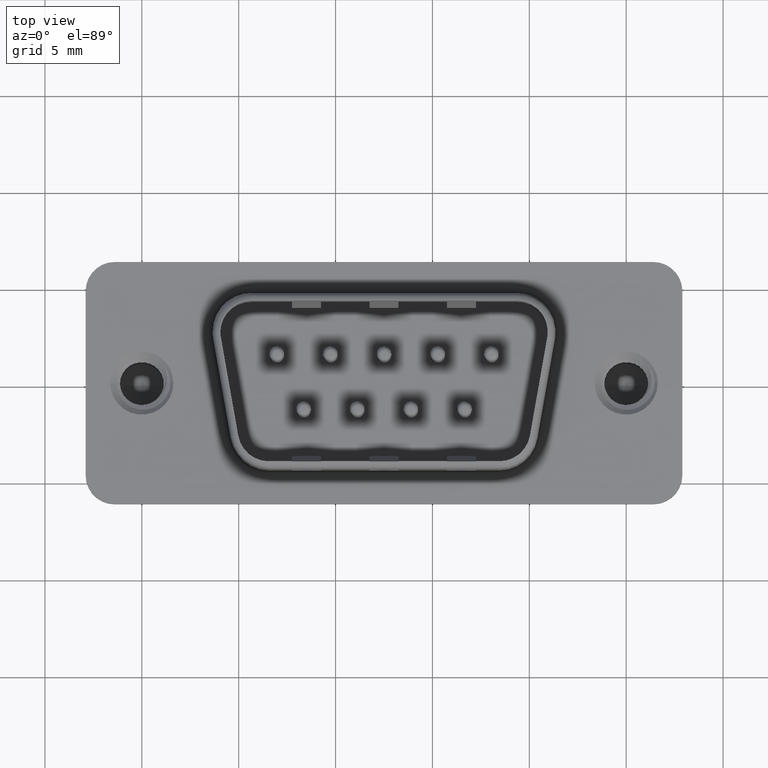
[diagram: clean part render]
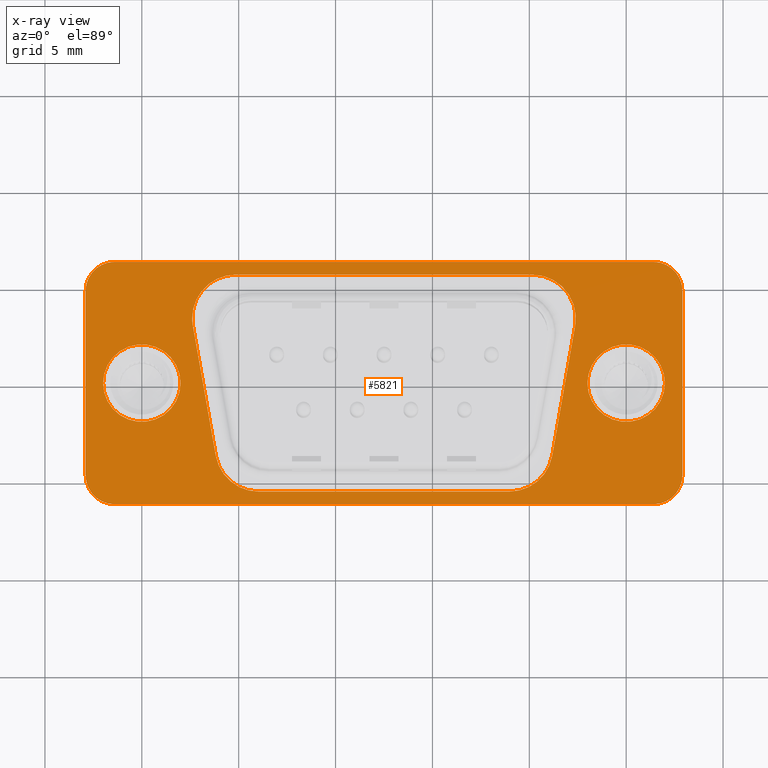
[diagram: x-ray — body ghosted, one internal face saturated and labeled with its STEP entity id]
A machine part, top view, then the same camera in x-ray: the body is ghosted and one INTERNAL B-rep face — a face not visible from any outside direction — is saturated and labeled: STEP entity #5821.
In plain terms, the highlighted planar face has unit normal (0, 0, -1).
Its self-contained STEP definition (entity closure, byte-faithful):
#85 = CARTESIAN_POINT ( 'NONE',  ( 27.90000000000000924, 4.750000000000004441, 0.0000000000000000000 ) ) ;
#184 = EDGE_LOOP ( 'NONE', ( #4875, #3271, #13551, #7991, #13913, #4501, #9204, #3302, #12106 ) ) ;
#400 = CARTESIAN_POINT ( 'NONE',  ( 0.0000000000000000000, 0.0000000000000000000, 0.0000000000000000000 ) ) ;
#424 = VERTEX_POINT ( 'NONE', #4797 ) ;
#442 = LINE ( 'NONE', #5393, #5073 ) ;
#492 = CIRCLE ( 'NONE', #5107, 1.500000000000001332 ) ;
#512 = CARTESIAN_POINT ( 'NONE',  ( 22.36581744427747864, 2.959291600249427390, 0.0000000000000000000 ) ) ;
#551 = AXIS2_PLACEMENT_3D ( 'NONE', #11761, #9252, #4581 ) ;
#605 = LINE ( 'NONE', #11480, #2246 ) ;
#808 = ORIENTED_EDGE ( 'NONE', *, *, #3441, .F. ) ;
#888 = DIRECTION ( 'NONE',  ( 0.0000000000000000000, 0.0000000000000000000, 1.000000000000000000 ) ) ;
#990 = CIRCLE ( 'NONE', #7557, 1.500000000000001332 ) ;
#994 = ORIENTED_EDGE ( 'NONE', *, *, #10795, .F. ) ;
#1106 = LINE ( 'NONE', #4587, #8569 ) ;
#1217 = EDGE_CURVE ( 'NONE', #13929, #7619, #7099, .T. ) ;
#1233 = EDGE_CURVE ( 'NONE', #5368, #8454, #10536, .T. ) ;
#1265 = ORIENTED_EDGE ( 'NONE', *, *, #14622, .T. ) ;
#1295 = CIRCLE ( 'NONE', #5191, 2.249999999999999556 ) ;
#1370 = CARTESIAN_POINT ( 'NONE',  ( 2.634182555722537789, 2.959291600249427390, 1.084202172485504434E-16 ) ) ;
#1439 = DIRECTION ( 'NONE',  ( 0.1736481776669240029, -0.9848077530122092416, -0.0000000000000000000 ) ) ;
#1463 = AXIS2_PLACEMENT_3D ( 'NONE', #3879, #2591, #13194 ) ;
#1647 = DIRECTION ( 'NONE',  ( -1.000000000000000000, 0.0000000000000000000, 0.0000000000000000000 ) ) ;
#2146 = DIRECTION ( 'NONE',  ( 1.000000000000000000, -0.0000000000000000000, -0.0000000000000000000 ) ) ;
#2222 = CARTESIAN_POINT ( 'NONE',  ( -1.399999999999995026, -5.600000000000002309, 0.0000000000000000000 ) ) ;
#2226 = DIRECTION ( 'NONE',  ( -1.000000000000000000, 0.0000000000000000000, 0.0000000000000000000 ) ) ;
#2246 = VECTOR ( 'NONE', #12268, 1000.000000000000000 ) ;
#2483 = VECTOR ( 'NONE', #9403, 1000.000000000000000 ) ;
#2545 = ORIENTED_EDGE ( 'NONE', *, *, #14343, .T. ) ;
#2591 = DIRECTION ( 'NONE',  ( 0.0000000000000000000, 0.0000000000000000000, 1.000000000000000000 ) ) ;
#2803 = VERTEX_POINT ( 'NONE', #9487 ) ;
#2846 = DIRECTION ( 'NONE',  ( 0.0000000000000000000, 0.0000000000000000000, 1.000000000000000000 ) ) ;
#3009 = FACE_BOUND ( 'NONE', #184, .T. ) ;
#3071 = DIRECTION ( 'NONE',  ( -1.000000000000000000, 0.0000000000000000000, 0.0000000000000000000 ) ) ;
#3271 = ORIENTED_EDGE ( 'NONE', *, *, #5873, .F. ) ;
#3273 = CARTESIAN_POINT ( 'NONE',  ( 26.40000000000000568, -4.749999999999995559, 0.0000000000000000000 ) ) ;
#3302 = ORIENTED_EDGE ( 'NONE', *, *, #8691, .F. ) ;
#3314 = VERTEX_POINT ( 'NONE', #12895 ) ;
#3318 = ORIENTED_EDGE ( 'NONE', *, *, #1217, .F. ) ;
#3441 = EDGE_CURVE ( 'NONE', #7619, #13929, #7116, .T. ) ;
#3442 = EDGE_CURVE ( 'NONE', #8454, #6108, #8346, .T. ) ;
#3591 = VECTOR ( 'NONE', #4839, 1000.000000000000000 ) ;
#3626 = CARTESIAN_POINT ( 'NONE',  ( -1.399999999999995026, 4.750000000000000888, 0.0000000000000000000 ) ) ;
#3724 = AXIS2_PLACEMENT_3D ( 'NONE', #10850, #5112, #12347 ) ;
#3729 = AXIS2_PLACEMENT_3D ( 'NONE', #4273, #13592, #3071 ) ;
#3786 = CARTESIAN_POINT ( 'NONE',  ( -1.399999999999995026, 5.600000000000005862, 0.0000000000000000000 ) ) ;
#3854 = LINE ( 'NONE', #3786, #3591 ) ;
#3858 = VERTEX_POINT ( 'NONE', #512 ) ;
#3879 = CARTESIAN_POINT ( 'NONE',  ( 25.00000000000000000, 0.0000000000000000000, 0.0000000000000000000 ) ) ;
#4059 = PLANE ( 'NONE',  #5592 ) ;
#4273 = CARTESIAN_POINT ( 'NONE',  ( 4.850000000000006750, 3.350000000000005862, 0.0000000000000000000 ) ) ;
#4362 = EDGE_CURVE ( 'NONE', #5908, #4852, #990, .T. ) ;
#4363 = VECTOR ( 'NONE', #1439, 999.9999999999998863 ) ;
#4425 = DIRECTION ( 'NONE',  ( 0.0000000000000000000, 0.0000000000000000000, 1.000000000000000000 ) ) ;
#4501 = ORIENTED_EDGE ( 'NONE', *, *, #14489, .F. ) ;
#4509 = CARTESIAN_POINT ( 'NONE',  ( 18.96860922925333526, -3.350000000000002309, 0.0000000000000000000 ) ) ;
#4565 = EDGE_CURVE ( 'NONE', #8107, #13111, #12664, .T. ) ;
#4570 = LINE ( 'NONE', #2222, #9550 ) ;
#4581 = DIRECTION ( 'NONE',  ( 1.000000000000000000, 0.0000000000000000000, 0.0000000000000000000 ) ) ;
#4587 = CARTESIAN_POINT ( 'NONE',  ( 27.90000000000000924, -4.749999999999995559, 0.0000000000000000000 ) ) ;
#4643 = VERTEX_POINT ( 'NONE', #11750 ) ;
#4736 = CARTESIAN_POINT ( 'NONE',  ( -2.899999999999994582, -4.749999999999999112, 0.0000000000000000000 ) ) ;
#4797 = CARTESIAN_POINT ( 'NONE',  ( 21.18442667353080822, -3.740708399750580337, 0.0000000000000000000 ) ) ;
#4839 = DIRECTION ( 'NONE',  ( -1.000000000000000000, 0.0000000000000000000, 0.0000000000000000000 ) ) ;
#4852 = VERTEX_POINT ( 'NONE', #9001 ) ;
#4875 = ORIENTED_EDGE ( 'NONE', *, *, #6407, .F. ) ;
#5073 = VECTOR ( 'NONE', #8602, 999.9999999999998863 ) ;
#5107 = AXIS2_PLACEMENT_3D ( 'NONE', #3273, #7911, #14941 ) ;
#5112 = DIRECTION ( 'NONE',  ( 0.0000000000000000000, 0.0000000000000000000, 1.000000000000000000 ) ) ;
#5191 = AXIS2_PLACEMENT_3D ( 'NONE', #12099, #13323, #1647 ) ;
#5303 = DIRECTION ( 'NONE',  ( -1.000000000000000000, -1.248002500702738800E-16, 0.0000000000000000000 ) ) ;
#5304 = CARTESIAN_POINT ( 'NONE',  ( 2.000000000000000000, 0.0000000000000000000, 0.0000000000000000000 ) ) ;
#5368 = VERTEX_POINT ( 'NONE', #12906 ) ;
#5393 = CARTESIAN_POINT ( 'NONE',  ( 21.18442667353080822, -3.740708399750580337, 1.084202172485504434E-16 ) ) ;
#5521 = DIRECTION ( 'NONE',  ( 1.000000000000000000, 0.0000000000000000000, 0.0000000000000000000 ) ) ;
#5592 = AXIS2_PLACEMENT_3D ( 'NONE', #6500, #8723, #7656 ) ;
#5670 = VERTEX_POINT ( 'NONE', #13137 ) ;
#5821 = ADVANCED_FACE ( 'NONE', ( #3009, #6434, #9874, #14530 ), #4059, .F. ) ;
#5873 = EDGE_CURVE ( 'NONE', #9574, #424, #6080, .T. ) ;
#5908 = VERTEX_POINT ( 'NONE', #85 ) ;
#5939 = CARTESIAN_POINT ( 'NONE',  ( -1.399999999999995248, 6.250000000000000888, 0.0000000000000000000 ) ) ;
#6080 = CIRCLE ( 'NONE', #7285, 2.249999999999998668 ) ;
#6108 = VERTEX_POINT ( 'NONE', #14198 ) ;
#6407 = EDGE_CURVE ( 'NONE', #424, #3858, #442, .T. ) ;
#6434 = FACE_BOUND ( 'NONE', #7343, .T. ) ;
#6453 = LINE ( 'NONE', #14551, #10557 ) ;
#6465 = CARTESIAN_POINT ( 'NONE',  ( 6.031390770746678953, -3.350000000000002309, 0.0000000000000000000 ) ) ;
#6500 = CARTESIAN_POINT ( 'NONE',  ( -1.399999999999995026, -4.749999999999999112, 0.0000000000000000000 ) ) ;
#6547 = VERTEX_POINT ( 'NONE', #9140 ) ;
#6567 = ORIENTED_EDGE ( 'NONE', *, *, #3442, .T. ) ;
#6846 = CARTESIAN_POINT ( 'NONE',  ( -2.000000000000000000, 2.449293598294706414E-16, 0.0000000000000000000 ) ) ;
#7013 = ORIENTED_EDGE ( 'NONE', *, *, #7381, .T. ) ;
#7051 = EDGE_CURVE ( 'NONE', #2803, #5670, #7380, .T. ) ;
#7099 = CIRCLE ( 'NONE', #551, 2.000000000000000000 ) ;
#7103 = VERTEX_POINT ( 'NONE', #9609 ) ;
#7116 = CIRCLE ( 'NONE', #10304, 2.000000000000000000 ) ;
#7122 = AXIS2_PLACEMENT_3D ( 'NONE', #3626, #15081, #14940 ) ;
#7131 = VERTEX_POINT ( 'NONE', #5939 ) ;
#7285 = AXIS2_PLACEMENT_3D ( 'NONE', #4509, #12750, #2226 ) ;
#7343 = EDGE_LOOP ( 'NONE', ( #8898, #994 ) ) ;
#7380 = LINE ( 'NONE', #1370, #4363 ) ;
#7381 = EDGE_CURVE ( 'NONE', #3314, #10687, #492, .T. ) ;
#7480 = EDGE_LOOP ( 'NONE', ( #6567, #12732, #7013, #13693, #7561, #1265, #2545, #8302 ) ) ;
#7485 = DIRECTION ( 'NONE',  ( 1.000000000000000000, 0.0000000000000000000, 0.0000000000000000000 ) ) ;
#7557 = AXIS2_PLACEMENT_3D ( 'NONE', #13302, #2846, #7485 ) ;
#7561 = ORIENTED_EDGE ( 'NONE', *, *, #4362, .T. ) ;
#7619 = VERTEX_POINT ( 'NONE', #5304 ) ;
#7656 = DIRECTION ( 'NONE',  ( -1.000000000000000000, 0.0000000000000000000, 0.0000000000000000000 ) ) ;
#7844 = CIRCLE ( 'NONE', #9071, 2.249999999999998668 ) ;
#7911 = DIRECTION ( 'NONE',  ( 0.0000000000000000000, 0.0000000000000000000, 1.000000000000000000 ) ) ;
#7991 = ORIENTED_EDGE ( 'NONE', *, *, #12850, .F. ) ;
#8107 = VERTEX_POINT ( 'NONE', #13744 ) ;
#8302 = ORIENTED_EDGE ( 'NONE', *, *, #1233, .T. ) ;
#8346 = CIRCLE ( 'NONE', #3724, 1.500000000000000444 ) ;
#8356 = CIRCLE ( 'NONE', #3729, 2.249999999999999556 ) ;
#8454 = VERTEX_POINT ( 'NONE', #8690 ) ;
#8483 = CARTESIAN_POINT ( 'NONE',  ( 23.00000000000000000, 2.449293598294711345E-16, 0.0000000000000000000 ) ) ;
#8569 = VECTOR ( 'NONE', #8967, 1000.000000000000000 ) ;
#8602 = DIRECTION ( 'NONE',  ( 0.1736481776669240029, 0.9848077530122092416, -0.0000000000000000000 ) ) ;
#8690 = CARTESIAN_POINT ( 'NONE',  ( -2.899999999999994582, -4.749999999999999112, 0.0000000000000000000 ) ) ;
#8691 = EDGE_CURVE ( 'NONE', #4643, #10431, #3854, .T. ) ;
#8723 = DIRECTION ( 'NONE',  ( -0.0000000000000000000, 0.0000000000000000000, -1.000000000000000000 ) ) ;
#8827 = CIRCLE ( 'NONE', #12226, 2.000000000000001776 ) ;
#8898 = ORIENTED_EDGE ( 'NONE', *, *, #4565, .F. ) ;
#8967 = DIRECTION ( 'NONE',  ( 0.0000000000000000000, 1.000000000000000000, 0.0000000000000000000 ) ) ;
#9001 = CARTESIAN_POINT ( 'NONE',  ( 26.40000000000000568, 6.250000000000005329, 0.0000000000000000000 ) ) ;
#9042 = CARTESIAN_POINT ( 'NONE',  ( 27.90000000000000924, -4.749999999999995559, 0.0000000000000000000 ) ) ;
#9071 = AXIS2_PLACEMENT_3D ( 'NONE', #11457, #4425, #14754 ) ;
#9125 = DIRECTION ( 'NONE',  ( -1.000000000000000000, 0.0000000000000000000, 0.0000000000000000000 ) ) ;
#9140 = CARTESIAN_POINT ( 'NONE',  ( 2.600000000000007638, 3.350000000000005862, 0.0000000000000000000 ) ) ;
#9204 = ORIENTED_EDGE ( 'NONE', *, *, #13783, .F. ) ;
#9252 = DIRECTION ( 'NONE',  ( 0.0000000000000000000, 0.0000000000000000000, 1.000000000000000000 ) ) ;
#9259 = CARTESIAN_POINT ( 'NONE',  ( 25.00000000000000000, 0.0000000000000000000, 0.0000000000000000000 ) ) ;
#9403 = DIRECTION ( 'NONE',  ( -0.0000000000000000000, -1.000000000000000000, -0.0000000000000000000 ) ) ;
#9425 = CARTESIAN_POINT ( 'NONE',  ( 4.850000000000006750, 5.600000000000005862, 0.0000000000000000000 ) ) ;
#9487 = CARTESIAN_POINT ( 'NONE',  ( 2.634182555722536456, 2.959291600249428278, 0.0000000000000000000 ) ) ;
#9550 = VECTOR ( 'NONE', #2146, 1000.000000000000000 ) ;
#9574 = VERTEX_POINT ( 'NONE', #11766 ) ;
#9609 = CARTESIAN_POINT ( 'NONE',  ( 6.031390770746678953, -5.600000000000002309, 0.0000000000000000000 ) ) ;
#9804 = CIRCLE ( 'NONE', #13208, 2.250000000000000888 ) ;
#9874 = FACE_BOUND ( 'NONE', #13439, .T. ) ;
#10304 = AXIS2_PLACEMENT_3D ( 'NONE', #400, #10919, #11911 ) ;
#10431 = VERTEX_POINT ( 'NONE', #9425 ) ;
#10536 = LINE ( 'NONE', #4736, #2483 ) ;
#10557 = VECTOR ( 'NONE', #5303, 1000.000000000000000 ) ;
#10687 = VERTEX_POINT ( 'NONE', #9042 ) ;
#10790 = EDGE_CURVE ( 'NONE', #10687, #5908, #1106, .T. ) ;
#10795 = EDGE_CURVE ( 'NONE', #13111, #8107, #8827, .T. ) ;
#10850 = CARTESIAN_POINT ( 'NONE',  ( -1.399999999999995026, -4.749999999999999112, 0.0000000000000000000 ) ) ;
#10919 = DIRECTION ( 'NONE',  ( 0.0000000000000000000, 0.0000000000000000000, 1.000000000000000000 ) ) ;
#11051 = EDGE_CURVE ( 'NONE', #3858, #4643, #7844, .T. ) ;
#11074 = EDGE_CURVE ( 'NONE', #7103, #9574, #4570, .T. ) ;
#11457 = CARTESIAN_POINT ( 'NONE',  ( 20.15000000000000924, 3.350000000000005862, 0.0000000000000000000 ) ) ;
#11480 = CARTESIAN_POINT ( 'NONE',  ( 26.40000000000000568, -6.249999999999995559, 0.0000000000000000000 ) ) ;
#11523 = CIRCLE ( 'NONE', #7122, 1.500000000000000000 ) ;
#11750 = CARTESIAN_POINT ( 'NONE',  ( 20.15000000000000924, 5.600000000000005862, 0.0000000000000000000 ) ) ;
#11761 = CARTESIAN_POINT ( 'NONE',  ( 0.0000000000000000000, 0.0000000000000000000, 0.0000000000000000000 ) ) ;
#11766 = CARTESIAN_POINT ( 'NONE',  ( 18.96860922925333526, -5.600000000000001421, 0.0000000000000000000 ) ) ;
#11911 = DIRECTION ( 'NONE',  ( 1.000000000000000000, 0.0000000000000000000, 0.0000000000000000000 ) ) ;
#12099 = CARTESIAN_POINT ( 'NONE',  ( 4.850000000000006750, 3.350000000000005862, 0.0000000000000000000 ) ) ;
#12106 = ORIENTED_EDGE ( 'NONE', *, *, #11051, .F. ) ;
#12226 = AXIS2_PLACEMENT_3D ( 'NONE', #9259, #888, #5521 ) ;
#12268 = DIRECTION ( 'NONE',  ( 1.000000000000000000, 1.872003751054108200E-16, -0.0000000000000000000 ) ) ;
#12347 = DIRECTION ( 'NONE',  ( -1.000000000000000000, 0.0000000000000000000, 0.0000000000000000000 ) ) ;
#12664 = CIRCLE ( 'NONE', #1463, 2.000000000000001776 ) ;
#12732 = ORIENTED_EDGE ( 'NONE', *, *, #12829, .T. ) ;
#12750 = DIRECTION ( 'NONE',  ( 0.0000000000000000000, 0.0000000000000000000, 1.000000000000000000 ) ) ;
#12829 = EDGE_CURVE ( 'NONE', #6108, #3314, #605, .T. ) ;
#12850 = EDGE_CURVE ( 'NONE', #5670, #7103, #9804, .T. ) ;
#12895 = CARTESIAN_POINT ( 'NONE',  ( 26.40000000000000568, -6.249999999999995559, 0.0000000000000000000 ) ) ;
#12906 = CARTESIAN_POINT ( 'NONE',  ( -2.899999999999995026, 4.750000000000000888, 0.0000000000000000000 ) ) ;
#13111 = VERTEX_POINT ( 'NONE', #8483 ) ;
#13137 = CARTESIAN_POINT ( 'NONE',  ( 3.815573326469209547, -3.740708399750580782, 0.0000000000000000000 ) ) ;
#13194 = DIRECTION ( 'NONE',  ( 1.000000000000000000, 0.0000000000000000000, 0.0000000000000000000 ) ) ;
#13208 = AXIS2_PLACEMENT_3D ( 'NONE', #6465, #14636, #9125 ) ;
#13302 = CARTESIAN_POINT ( 'NONE',  ( 26.40000000000000568, 4.750000000000004441, 0.0000000000000000000 ) ) ;
#13323 = DIRECTION ( 'NONE',  ( 0.0000000000000000000, 0.0000000000000000000, 1.000000000000000000 ) ) ;
#13439 = EDGE_LOOP ( 'NONE', ( #808, #3318 ) ) ;
#13551 = ORIENTED_EDGE ( 'NONE', *, *, #11074, .F. ) ;
#13592 = DIRECTION ( 'NONE',  ( 0.0000000000000000000, 0.0000000000000000000, 1.000000000000000000 ) ) ;
#13693 = ORIENTED_EDGE ( 'NONE', *, *, #10790, .T. ) ;
#13744 = CARTESIAN_POINT ( 'NONE',  ( 27.00000000000000355, 0.0000000000000000000, 0.0000000000000000000 ) ) ;
#13783 = EDGE_CURVE ( 'NONE', #10431, #6547, #8356, .T. ) ;
#13913 = ORIENTED_EDGE ( 'NONE', *, *, #7051, .F. ) ;
#13929 = VERTEX_POINT ( 'NONE', #6846 ) ;
#14198 = CARTESIAN_POINT ( 'NONE',  ( -1.399999999999994804, -6.250000000000000000, 0.0000000000000000000 ) ) ;
#14343 = EDGE_CURVE ( 'NONE', #7131, #5368, #11523, .T. ) ;
#14489 = EDGE_CURVE ( 'NONE', #6547, #2803, #1295, .T. ) ;
#14530 = FACE_OUTER_BOUND ( 'NONE', #7480, .T. ) ;
#14551 = CARTESIAN_POINT ( 'NONE',  ( 26.40000000000000568, 6.250000000000004441, 0.0000000000000000000 ) ) ;
#14622 = EDGE_CURVE ( 'NONE', #4852, #7131, #6453, .T. ) ;
#14636 = DIRECTION ( 'NONE',  ( 0.0000000000000000000, 0.0000000000000000000, 1.000000000000000000 ) ) ;
#14754 = DIRECTION ( 'NONE',  ( -1.000000000000000000, 0.0000000000000000000, 0.0000000000000000000 ) ) ;
#14940 = DIRECTION ( 'NONE',  ( 1.000000000000000000, 0.0000000000000000000, 0.0000000000000000000 ) ) ;
#14941 = DIRECTION ( 'NONE',  ( 1.000000000000000000, 0.0000000000000000000, 0.0000000000000000000 ) ) ;
#15081 = DIRECTION ( 'NONE',  ( 0.0000000000000000000, 0.0000000000000000000, 1.000000000000000000 ) ) ;